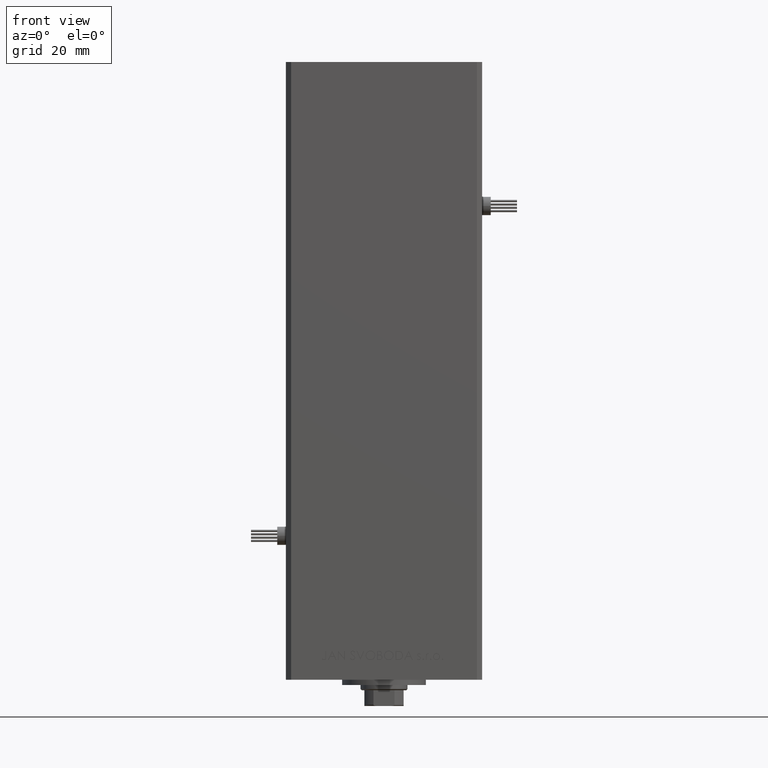
[diagram: clean part render]
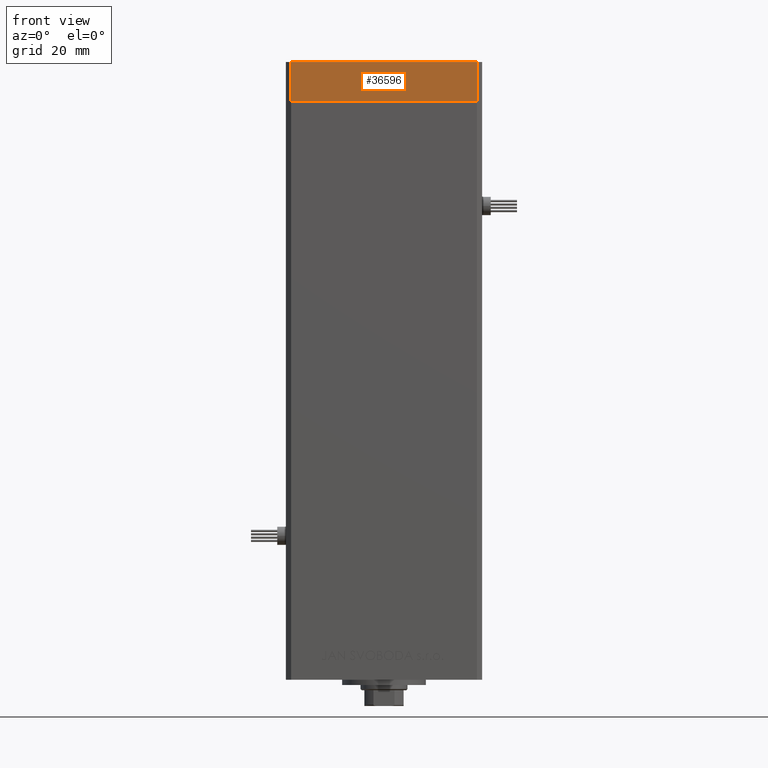
[diagram: same view with one face highlighted and labeled with its STEP entity id]
A machine part, front view. The second image highlights one B-rep face of the part: STEP entity #36596.
In plain terms, the highlighted planar face has unit normal (0, -1, 0).
Its self-contained STEP definition (entity closure, byte-faithful):
#2489 = LINE ( 'NONE', #22615, #38464 ) ;
#2640 = EDGE_CURVE ( 'NONE', #34262, #45831, #12173, .T. ) ;
#3432 = DIRECTION ( 'NONE',  ( 1.000000000000000000, 9.773090005503140331E-17, 0.000000000000000000 ) ) ;
#5066 = CARTESIAN_POINT ( 'NONE',  ( -35.49999999999998579, -32.50000000000001421, -15.00000000000000000 ) ) ;
#6065 = LINE ( 'NONE', #19018, #23839 ) ;
#8197 = DIRECTION ( 'NONE',  ( 1.000000000000000000, 9.773090005503140331E-17, 0.000000000000000000 ) ) ;
#10551 = DIRECTION ( 'NONE',  ( 0.000000000000000000, 0.000000000000000000, 1.000000000000000000 ) ) ;
#11930 = ORIENTED_EDGE ( 'NONE', *, *, #27521, .F. ) ;
#12173 = LINE ( 'NONE', #28331, #26450 ) ;
#16998 = CARTESIAN_POINT ( 'NONE',  ( -35.49999999999998579, -32.50000000000001421, 0.000000000000000000 ) ) ;
#19018 = CARTESIAN_POINT ( 'NONE',  ( 35.50000000000000711, -32.50000000000000711, -15.00000000000000000 ) ) ;
#19327 = CARTESIAN_POINT ( 'NONE',  ( -35.49999999999998579, -32.50000000000001421, 0.000000000000000000 ) ) ;
#21219 = DIRECTION ( 'NONE',  ( 9.773090005503140331E-17, -1.000000000000000000, 0.000000000000000000 ) ) ;
#21493 = VERTEX_POINT ( 'NONE', #49338 ) ;
#22615 = CARTESIAN_POINT ( 'NONE',  ( -35.49999999999998579, -32.50000000000001421, -15.00000000000000000 ) ) ;
#22696 = AXIS2_PLACEMENT_3D ( 'NONE', #5066, #21219, #33392 ) ;
#23839 = VECTOR ( 'NONE', #10551, 1000.000000000000000 ) ;
#26067 = DIRECTION ( 'NONE',  ( 0.000000000000000000, 0.000000000000000000, 1.000000000000000000 ) ) ;
#26450 = VECTOR ( 'NONE', #8197, 1000.000000000000000 ) ;
#27521 = EDGE_CURVE ( 'NONE', #34262, #27727, #2489, .T. ) ;
#27727 = VERTEX_POINT ( 'NONE', #16998 ) ;
#27971 = VECTOR ( 'NONE', #3432, 1000.000000000000000 ) ;
#28331 = CARTESIAN_POINT ( 'NONE',  ( -35.49999999999998579, -32.50000000000001421, -15.00000000000000000 ) ) ;
#28382 = PLANE ( 'NONE',  #22696 ) ;
#30527 = ORIENTED_EDGE ( 'NONE', *, *, #47607, .T. ) ;
#31936 = CARTESIAN_POINT ( 'NONE',  ( -35.49999999999998579, -32.50000000000001421, -15.00000000000000000 ) ) ;
#33392 = DIRECTION ( 'NONE',  ( 1.000000000000000000, 9.773090005503140331E-17, 0.000000000000000000 ) ) ;
#34262 = VERTEX_POINT ( 'NONE', #31936 ) ;
#36596 = ADVANCED_FACE ( 'NONE', ( #44751 ), #28382, .T. ) ;
#36924 = EDGE_LOOP ( 'NONE', ( #51083, #11930, #43184, #30527 ) ) ;
#38464 = VECTOR ( 'NONE', #26067, 1000.000000000000000 ) ;
#39682 = LINE ( 'NONE', #19327, #27971 ) ;
#42213 = EDGE_CURVE ( 'NONE', #27727, #21493, #39682, .T. ) ;
#43184 = ORIENTED_EDGE ( 'NONE', *, *, #2640, .T. ) ;
#44751 = FACE_OUTER_BOUND ( 'NONE', #36924, .T. ) ;
#45831 = VERTEX_POINT ( 'NONE', #50103 ) ;
#47607 = EDGE_CURVE ( 'NONE', #45831, #21493, #6065, .T. ) ;
#49338 = CARTESIAN_POINT ( 'NONE',  ( 35.50000000000000711, -32.50000000000000711, 0.000000000000000000 ) ) ;
#50103 = CARTESIAN_POINT ( 'NONE',  ( 35.50000000000000711, -32.50000000000000711, -15.00000000000000000 ) ) ;
#51083 = ORIENTED_EDGE ( 'NONE', *, *, #42213, .F. ) ;